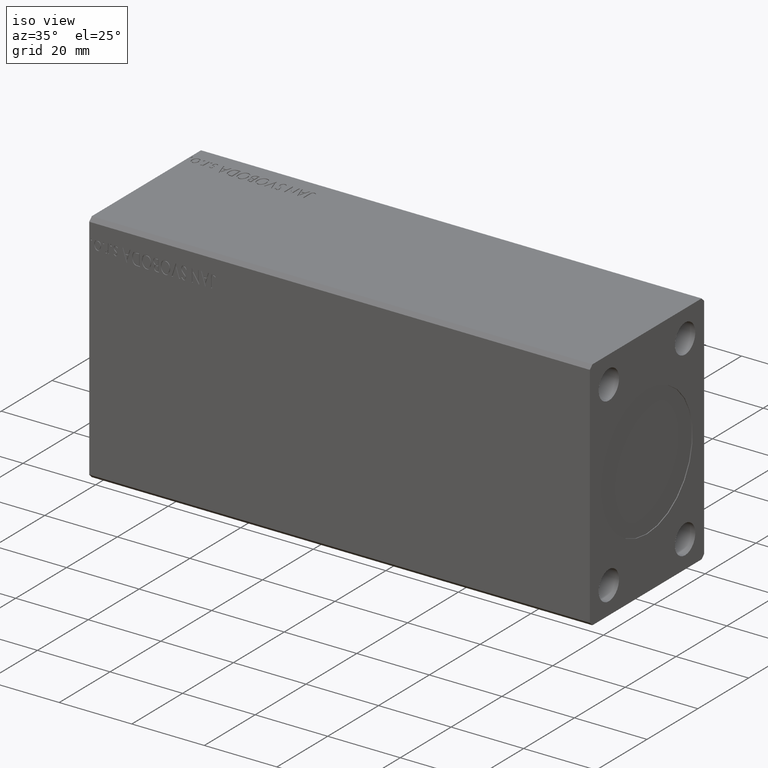
[diagram: clean part render]
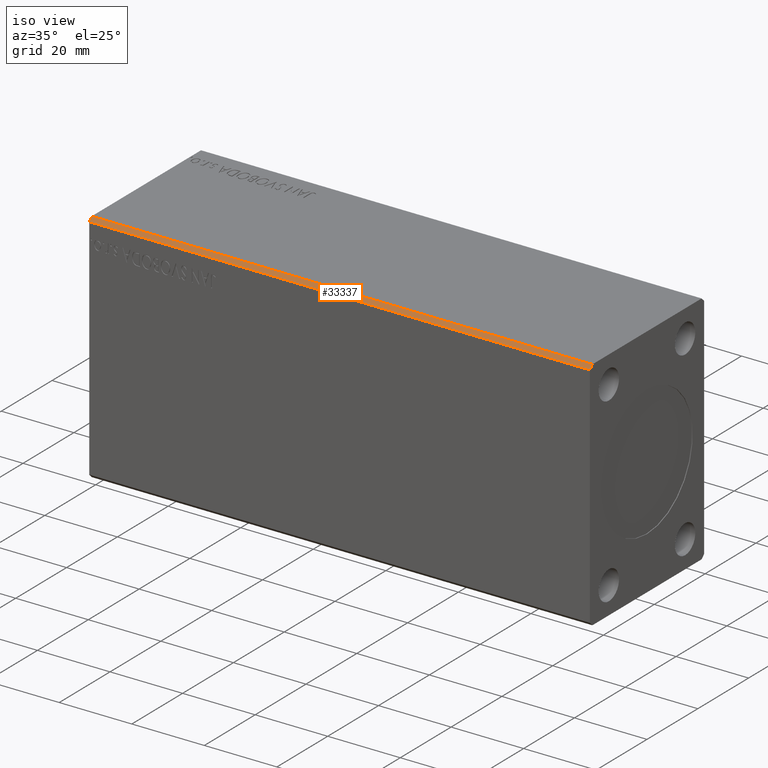
[diagram: same view with one face highlighted and labeled with its STEP entity id]
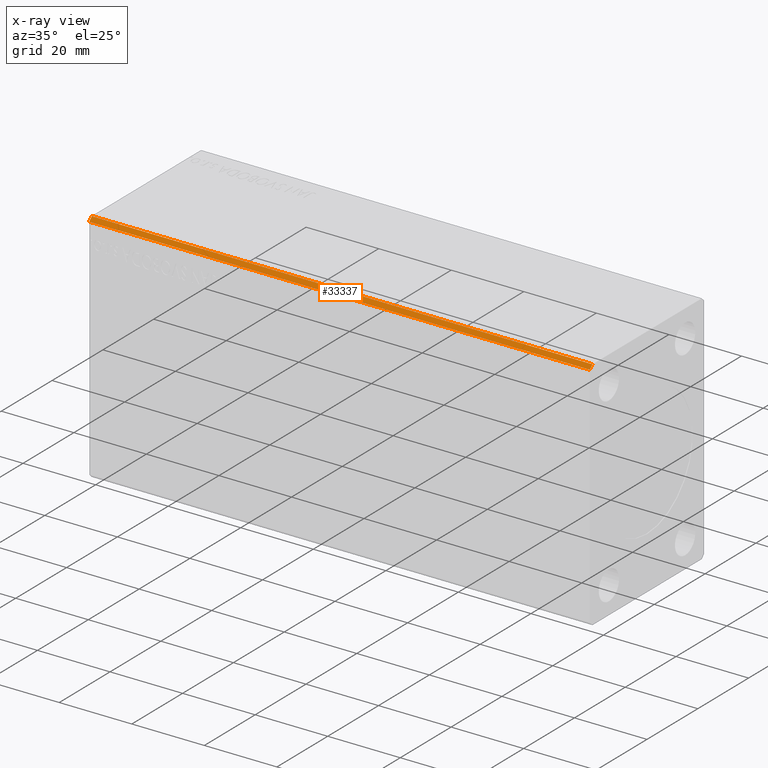
[diagram: x-ray of the same camera — body ghosted, the highlighted face saturated]
A machine part, iso view. The second image highlights one B-rep face of the part: STEP entity #33337.
The next image is the same camera in x-ray: the body ghosted, the highlighted face saturated — about 0% of this face is hidden behind the body in this view.
In plain terms, the highlighted planar face has unit normal (0, 0.7071, -0.7071).
Its self-contained STEP definition (entity closure, byte-faithful):
#1727 = ORIENTED_EDGE ( 'NONE', *, *, #8708, .F. ) ;
#1828 = LINE ( 'NONE', #16084, #37512 ) ;
#1906 = PLANE ( 'NONE',  #17965 ) ;
#2420 = DIRECTION ( 'NONE',  ( -1.000000000000000000, -0.000000000000000000, -0.000000000000000000 ) ) ;
#3535 = EDGE_CURVE ( 'NONE', #24575, #12773, #15570, .T. ) ;
#3822 = VECTOR ( 'NONE', #2420, 1000.000000000000000 ) ;
#5687 = DIRECTION ( 'NONE',  ( 0.000000000000000000, 0.7071067811865474617, 0.7071067811865474617 ) ) ;
#8708 = EDGE_CURVE ( 'NONE', #26466, #24575, #1828, .T. ) ;
#8935 = LINE ( 'NONE', #38856, #22568 ) ;
#12396 = FACE_OUTER_BOUND ( 'NONE', #22222, .T. ) ;
#12526 = DIRECTION ( 'NONE',  ( 0.000000000000000000, -0.7071067811865474617, -0.7071067811865474617 ) ) ;
#12773 = VERTEX_POINT ( 'NONE', #13248 ) ;
#12925 = EDGE_CURVE ( 'NONE', #31023, #12773, #8935, .T. ) ;
#13248 = CARTESIAN_POINT ( 'NONE',  ( 0.000000000000000000, -22.50000000000001776, 31.50000000000000000 ) ) ;
#15076 = DIRECTION ( 'NONE',  ( 0.000000000000000000, 0.7071067811865475727, -0.7071067811865475727 ) ) ;
#15570 = LINE ( 'NONE', #32754, #3822 ) ;
#16084 = CARTESIAN_POINT ( 'NONE',  ( 138.0000000000000000, -21.50000000000001421, 32.50000000000000000 ) ) ;
#17965 = AXIS2_PLACEMENT_3D ( 'NONE', #25986, #15076, #5687 ) ;
#17982 = ORIENTED_EDGE ( 'NONE', *, *, #3535, .F. ) ;
#18578 = LINE ( 'NONE', #28400, #18637 ) ;
#18637 = VECTOR ( 'NONE', #19020, 1000.000000000000000 ) ;
#19020 = DIRECTION ( 'NONE',  ( -1.000000000000000000, -0.000000000000000000, -0.000000000000000000 ) ) ;
#20385 = CARTESIAN_POINT ( 'NONE',  ( 138.0000000000000000, -21.50000000000001421, 32.50000000000000000 ) ) ;
#22222 = EDGE_LOOP ( 'NONE', ( #23593, #17982, #1727, #32673 ) ) ;
#22568 = VECTOR ( 'NONE', #35506, 1000.000000000000114 ) ;
#23503 = EDGE_CURVE ( 'NONE', #26466, #31023, #18578, .T. ) ;
#23593 = ORIENTED_EDGE ( 'NONE', *, *, #12925, .T. ) ;
#24575 = VERTEX_POINT ( 'NONE', #39506 ) ;
#25986 = CARTESIAN_POINT ( 'NONE',  ( 138.0000000000000000, -21.50000000000001421, 32.50000000000000000 ) ) ;
#26466 = VERTEX_POINT ( 'NONE', #20385 ) ;
#26931 = CARTESIAN_POINT ( 'NONE',  ( 0.000000000000000000, -21.50000000000001421, 32.50000000000000000 ) ) ;
#28400 = CARTESIAN_POINT ( 'NONE',  ( 138.0000000000000000, -21.50000000000001421, 32.50000000000000000 ) ) ;
#31023 = VERTEX_POINT ( 'NONE', #26931 ) ;
#32673 = ORIENTED_EDGE ( 'NONE', *, *, #23503, .T. ) ;
#32754 = CARTESIAN_POINT ( 'NONE',  ( 138.0000000000000000, -22.50000000000001776, 31.50000000000000000 ) ) ;
#33337 = ADVANCED_FACE ( 'NONE', ( #12396 ), #1906, .F. ) ;
#35506 = DIRECTION ( 'NONE',  ( 0.000000000000000000, -0.7071067811865474617, -0.7071067811865474617 ) ) ;
#37512 = VECTOR ( 'NONE', #12526, 1000.000000000000114 ) ;
#38856 = CARTESIAN_POINT ( 'NONE',  ( 0.000000000000000000, -21.50000000000001421, 32.50000000000000000 ) ) ;
#39506 = CARTESIAN_POINT ( 'NONE',  ( 138.0000000000000000, -22.50000000000001776, 31.50000000000000000 ) ) ;